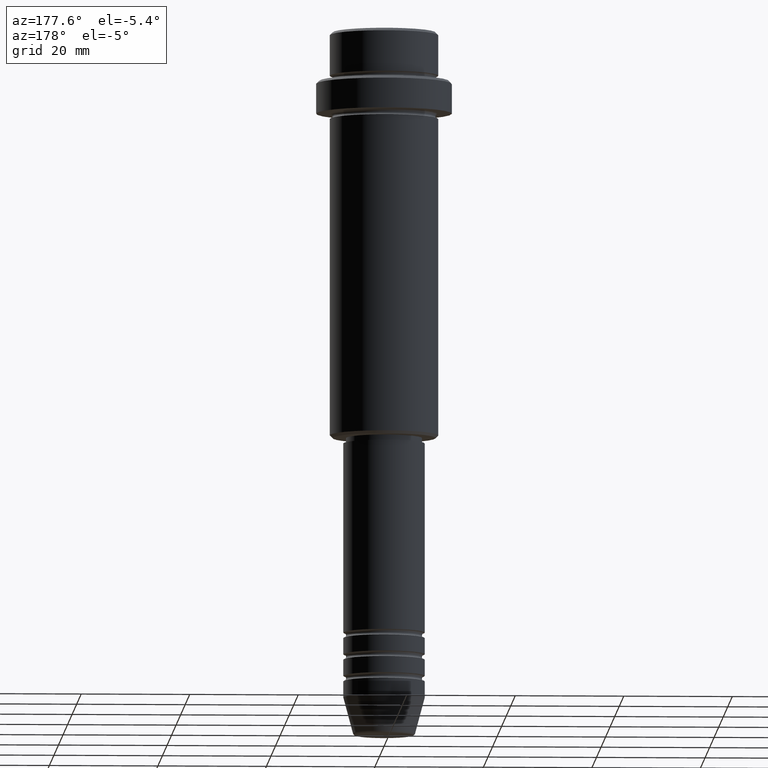
[diagram: clean part render]
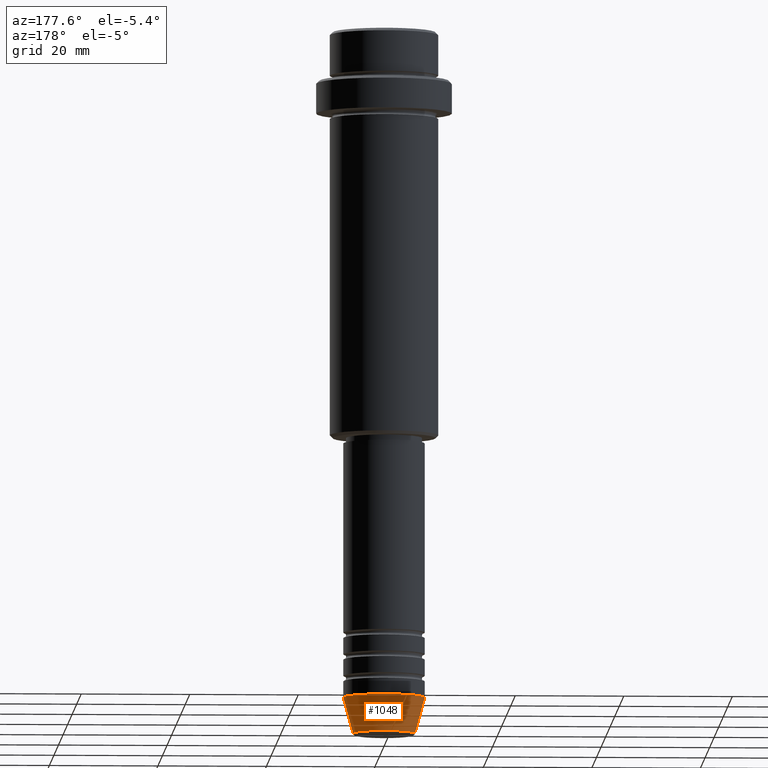
[diagram: same view with one face highlighted and labeled with its STEP entity id]
A machine part, auxiliary view. The second image highlights one B-rep face of the part: STEP entity #1048.
In plain terms, the highlighted conical surface has half-angle 15 deg.
Its self-contained STEP definition (entity closure, byte-faithful):
#10 = VERTEX_POINT ( 'NONE', #621 ) ;
#100 = DIRECTION ( 'NONE',  ( 1.000000000000000000, 0.000000000000000000, 0.000000000000000000 ) ) ;
#114 = EDGE_CURVE ( 'NONE', #116, #799, #1321, .T. ) ;
#116 = VERTEX_POINT ( 'NONE', #989 ) ;
#130 = DIRECTION ( 'NONE',  ( 0.2588190451025213501, 0.000000000000000000, 0.9659258262890680902 ) ) ;
#145 = DIRECTION ( 'NONE',  ( 1.000000000000000000, 0.000000000000000000, 0.000000000000000000 ) ) ;
#146 = ORIENTED_EDGE ( 'NONE', *, *, #1264, .T. ) ;
#155 = VECTOR ( 'NONE', #130, 1000.000000000000000 ) ;
#178 = CIRCLE ( 'NONE', #558, 5.723655072137191269 ) ;
#227 = DIRECTION ( 'NONE',  ( -0.2588190451025213501, 3.169619151431772337E-17, 0.9659258262890680902 ) ) ;
#235 = ORIENTED_EDGE ( 'NONE', *, *, #963, .F. ) ;
#274 = DIRECTION ( 'NONE',  ( -0.000000000000000000, -0.000000000000000000, 1.000000000000000000 ) ) ;
#285 = CARTESIAN_POINT ( 'NONE',  ( 0.000000000000000000, 0.000000000000000000, -123.0000000000000000 ) ) ;
#361 = LINE ( 'NONE', #764, #155 ) ;
#373 = FACE_OUTER_BOUND ( 'NONE', #1316, .T. ) ;
#544 = ORIENTED_EDGE ( 'NONE', *, *, #761, .F. ) ;
#558 = AXIS2_PLACEMENT_3D ( 'NONE', #1083, #856, #100 ) ;
#586 = DIRECTION ( 'NONE',  ( -0.000000000000000000, -0.000000000000000000, 1.000000000000000000 ) ) ;
#621 = CARTESIAN_POINT ( 'NONE',  ( 7.500000000000000000, 0.000000000000000000, -123.0000000000000000 ) ) ;
#624 = DIRECTION ( 'NONE',  ( 1.000000000000000000, 0.000000000000000000, 0.000000000000000000 ) ) ;
#687 = CARTESIAN_POINT ( 'NONE',  ( -7.500000000000000000, 9.184850993605147944E-16, -123.0000000000000000 ) ) ;
#706 = AXIS2_PLACEMENT_3D ( 'NONE', #285, #274, #624 ) ;
#711 = VERTEX_POINT ( 'NONE', #1008 ) ;
#761 = EDGE_CURVE ( 'NONE', #10, #799, #1023, .T. ) ;
#764 = CARTESIAN_POINT ( 'NONE',  ( 7.500000000000000000, 0.000000000000000000, -123.0000000000000000 ) ) ;
#799 = VERTEX_POINT ( 'NONE', #687 ) ;
#856 = DIRECTION ( 'NONE',  ( -0.000000000000000000, -0.000000000000000000, 1.000000000000000000 ) ) ;
#861 = CARTESIAN_POINT ( 'NONE',  ( -7.500000000000000000, 9.184850993605147944E-16, -123.0000000000000000 ) ) ;
#914 = ORIENTED_EDGE ( 'NONE', *, *, #114, .T. ) ;
#963 = EDGE_CURVE ( 'NONE', #711, #10, #361, .T. ) ;
#989 = CARTESIAN_POINT ( 'NONE',  ( -5.723655072137191269, 8.097153428560735915E-16, -129.6294095225512422 ) ) ;
#1008 = CARTESIAN_POINT ( 'NONE',  ( 5.723655072137191269, 0.000000000000000000, -129.6294095225512422 ) ) ;
#1023 = CIRCLE ( 'NONE', #1204, 7.500000000000000000 ) ;
#1048 = ADVANCED_FACE ( 'NONE', ( #373 ), #1175, .T. ) ;
#1083 = CARTESIAN_POINT ( 'NONE',  ( 0.000000000000000000, 0.000000000000000000, -129.6294095225512422 ) ) ;
#1134 = CARTESIAN_POINT ( 'NONE',  ( 0.000000000000000000, 0.000000000000000000, -123.0000000000000000 ) ) ;
#1175 = CONICAL_SURFACE ( 'NONE', #706, 7.500000000000000000, 0.2617993877991500740 ) ;
#1204 = AXIS2_PLACEMENT_3D ( 'NONE', #1134, #586, #145 ) ;
#1264 = EDGE_CURVE ( 'NONE', #711, #116, #178, .T. ) ;
#1316 = EDGE_LOOP ( 'NONE', ( #146, #914, #544, #235 ) ) ;
#1321 = LINE ( 'NONE', #861, #1355 ) ;
#1355 = VECTOR ( 'NONE', #227, 1000.000000000000000 ) ;